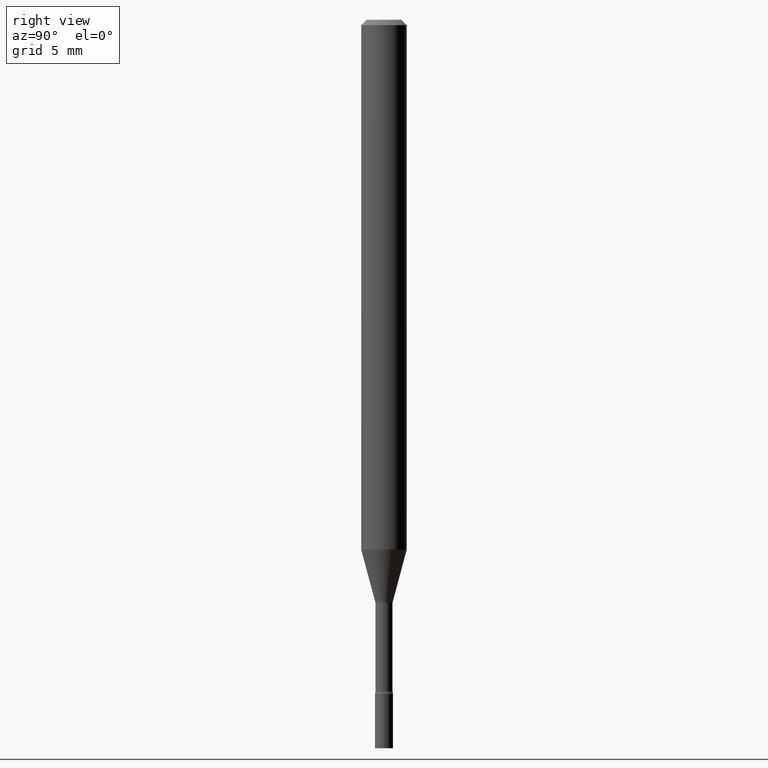
[diagram: clean part render]
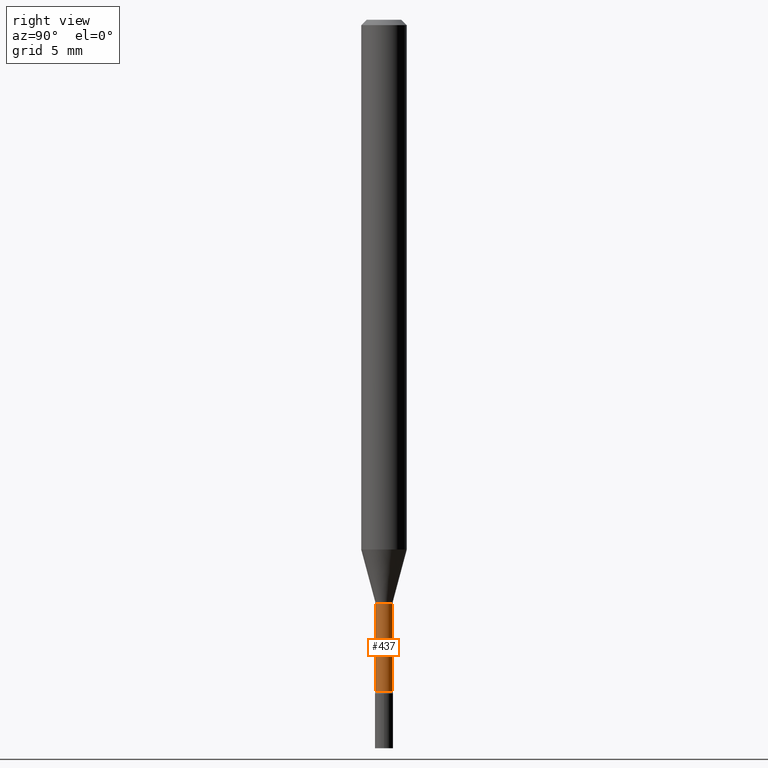
[diagram: same view with one face highlighted and labeled with its STEP entity id]
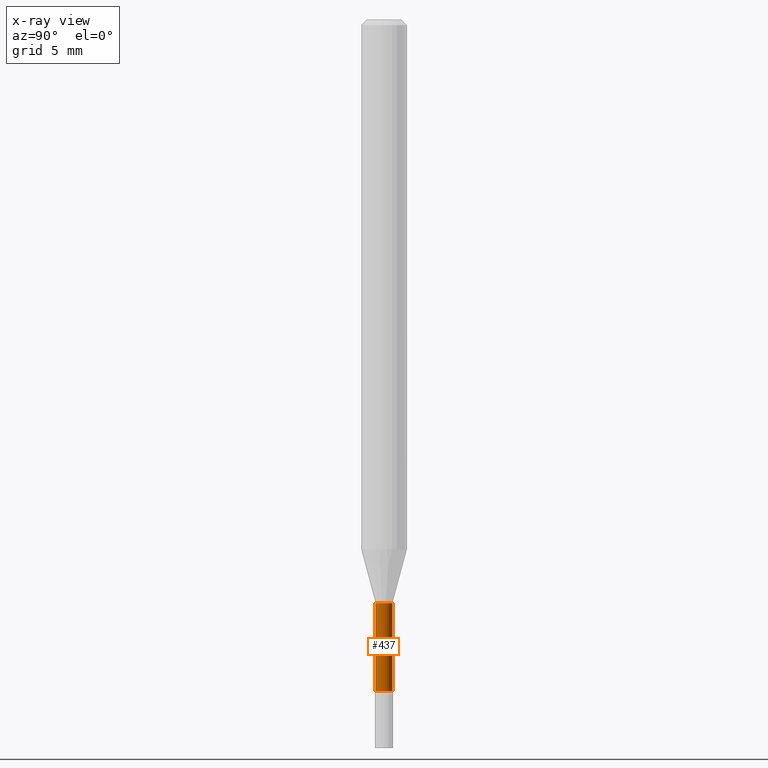
[diagram: x-ray of the same camera — body ghosted, the highlighted face saturated]
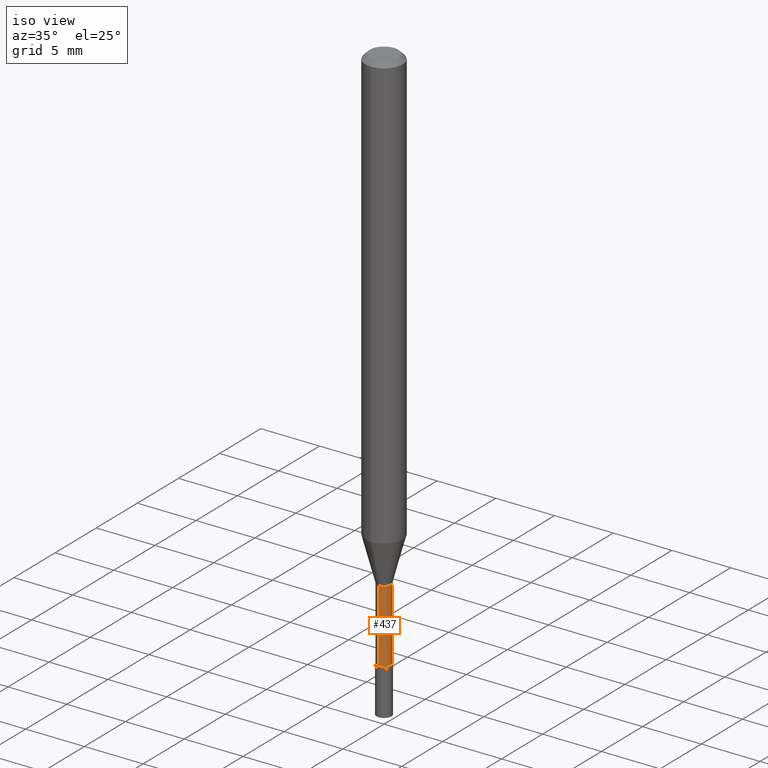
[diagram: same view with one face highlighted and labeled with its STEP entity id]
A machine part, right view. The second image highlights one B-rep face of the part: STEP entity #437.
The next image is the same camera in x-ray: the body ghosted, the highlighted face saturated — about 0% of this face is hidden behind the body in this view.
A second angle (iso view) of the same face is appended — the face is thin or edge-on in the first view.
In plain terms, the highlighted cylindrical surface (edge-blend (fillet) strip) has radius 0.5969 mm, axis along (-0, 0, 1).
Its self-contained STEP definition (entity closure, byte-faithful):
#6 = LINE ( 'NONE', #9, #83 ) ;
#9 = CARTESIAN_POINT ( 'NONE',  ( -1.640996229256272766E-16, -0.02350000000000000352, 8.204825564474257839E-17 ) ) ;
#22 = DIRECTION ( 'NONE',  ( -6.982962677686265922E-15, -1.000000000000000000, 0.000000000000000000 ) ) ;
#28 = CIRCLE ( 'NONE', #330, 0.02350000000000000352 ) ;
#36 = ORIENTED_EDGE ( 'NONE', *, *, #216, .F. ) ;
#42 = DIRECTION ( 'NONE',  ( -2.445515036906521826E-29, 3.491415133818832582E-15, 1.000000000000000000 ) ) ;
#65 = CYLINDRICAL_SURFACE ( 'NONE', #151, 0.02350000000000000352 ) ;
#83 = VECTOR ( 'NONE', #293, 39.37007874015748143 ) ;
#91 = ORIENTED_EDGE ( 'NONE', *, *, #391, .T. ) ;
#97 = VERTEX_POINT ( 'NONE', #474 ) ;
#104 = FACE_OUTER_BOUND ( 'NONE', #507, .T. ) ;
#107 = VERTEX_POINT ( 'NONE', #471 ) ;
#119 = ORIENTED_EDGE ( 'NONE', *, *, #360, .T. ) ;
#120 = DIRECTION ( 'NONE',  ( -6.982962677686265922E-15, -1.000000000000000000, 3.491415133818832582E-15 ) ) ;
#130 = CARTESIAN_POINT ( 'NONE',  ( 3.917653431487879575E-29, -5.593159016947357312E-15, -1.601974787463810834 ) ) ;
#151 = AXIS2_PLACEMENT_3D ( 'NONE', #229, #42, #120 ) ;
#171 = CARTESIAN_POINT ( 'NONE',  ( -1.640996229255880800E-16, -0.02350000000000559280, -1.601974787463810834 ) ) ;
#174 = DIRECTION ( 'NONE',  ( -2.445515036906521826E-29, 3.491415133818832582E-15, 1.000000000000000000 ) ) ;
#192 = EDGE_CURVE ( 'NONE', #107, #193, #6, .T. ) ;
#193 = VERTEX_POINT ( 'NONE', #171 ) ;
#216 = EDGE_CURVE ( 'NONE', #193, #97, #223, .T. ) ;
#220 = DIRECTION ( 'NONE',  ( -2.445515036906521826E-29, 3.491415133818832582E-15, 1.000000000000000000 ) ) ;
#223 = CIRCLE ( 'NONE', #480, 0.02350000000000000352 ) ;
#227 = CARTESIAN_POINT ( 'NONE',  ( 4.508213188910888464E-29, -6.436289908957442537E-15, -1.843461651584688887 ) ) ;
#229 = CARTESIAN_POINT ( 'NONE',  ( 0.000000000000000000, 0.000000000000000000, 0.000000000000000000 ) ) ;
#253 = DIRECTION ( 'NONE',  ( -6.982962677686265922E-15, -1.000000000000000000, 0.000000000000000000 ) ) ;
#293 = DIRECTION ( 'NONE',  ( -2.445515036906521826E-29, 3.491415133818832582E-15, 1.000000000000000000 ) ) ;
#330 = AXIS2_PLACEMENT_3D ( 'NONE', #227, #220, #22 ) ;
#335 = VERTEX_POINT ( 'NONE', #418 ) ;
#360 = EDGE_CURVE ( 'NONE', #107, #335, #28, .T. ) ;
#363 = VECTOR ( 'NONE', #174, 39.37007874015748143 ) ;
#366 = DIRECTION ( 'NONE',  ( -2.445515036906521826E-29, 3.491415133818832582E-15, 1.000000000000000000 ) ) ;
#377 = LINE ( 'NONE', #510, #363 ) ;
#391 = EDGE_CURVE ( 'NONE', #335, #97, #377, .T. ) ;
#418 = CARTESIAN_POINT ( 'NONE',  ( 1.723066134218695118E-16, 0.02349999999999356423, -1.843461651584688887 ) ) ;
#437 = ADVANCED_FACE ( 'NONE', ( #104 ), #65, .T. ) ;
#471 = CARTESIAN_POINT ( 'NONE',  ( -1.640996229255822129E-16, -0.02350000000000643935, -1.843461651584688887 ) ) ;
#474 = CARTESIAN_POINT ( 'NONE',  ( 1.669775429036686571E-16, 0.02349999999999441078, -1.601974787463810834 ) ) ;
#480 = AXIS2_PLACEMENT_3D ( 'NONE', #130, #366, #253 ) ;
#504 = ORIENTED_EDGE ( 'NONE', *, *, #192, .F. ) ;
#507 = EDGE_LOOP ( 'NONE', ( #119, #91, #36, #504 ) ) ;
#510 = CARTESIAN_POINT ( 'NONE',  ( 1.669775429036235194E-16, 0.02350000000000000352, -8.204825564474257839E-17 ) ) ;